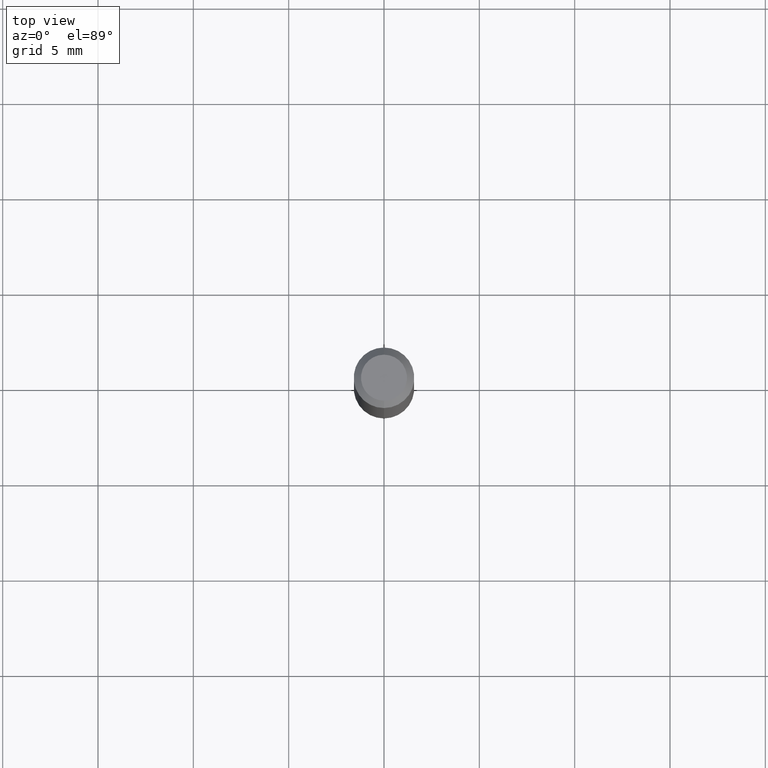
[diagram: clean part render]
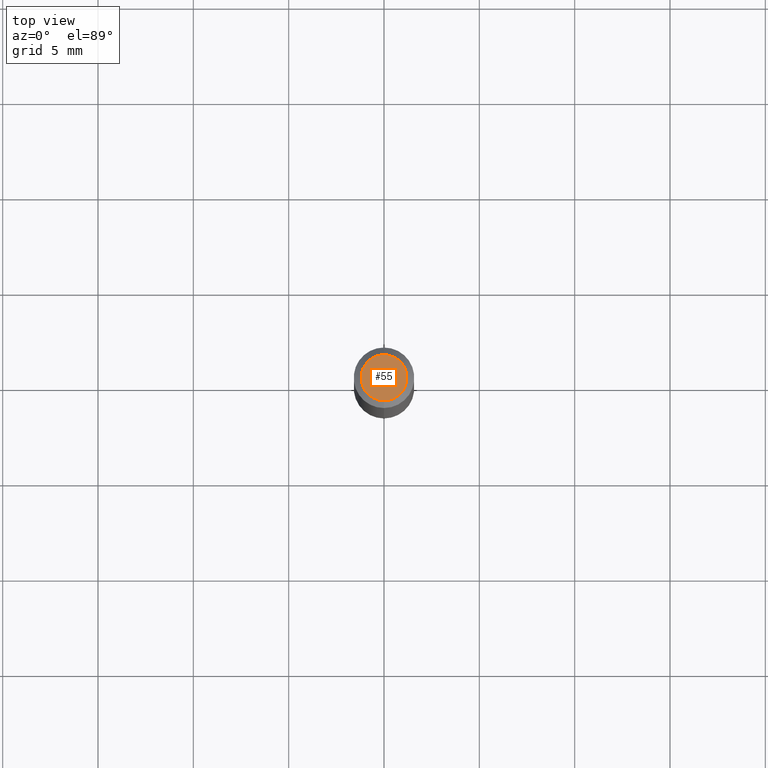
[diagram: same view with one face highlighted and labeled with its STEP entity id]
A machine part, top view. The second image highlights one B-rep face of the part: STEP entity #55.
In plain terms, the highlighted planar face has unit normal (0, -0, -1).
Its self-contained STEP definition (entity closure, byte-faithful):
#9 = DIRECTION ( 'NONE',  ( -2.445665953977767409E-29, 3.491199011983142468E-15, 1.000000000000000000 ) ) ;
#18 = EDGE_CURVE ( 'NONE', #265, #356, #402, .T. ) ;
#31 = ORIENTED_EDGE ( 'NONE', *, *, #45, .T. ) ;
#45 = EDGE_CURVE ( 'NONE', #356, #265, #327, .T. ) ;
#51 = AXIS2_PLACEMENT_3D ( 'NONE', #313, #154, #239 ) ;
#55 = ADVANCED_FACE ( 'NONE', ( #113 ), #123, .F. ) ;
#113 = FACE_OUTER_BOUND ( 'NONE', #249, .T. ) ;
#122 = DIRECTION ( 'NONE',  ( -6.982962677686266711E-15, -1.000000000000000000, 3.491199011983143651E-15 ) ) ;
#123 = PLANE ( 'NONE',  #51 ) ;
#143 = AXIS2_PLACEMENT_3D ( 'NONE', #158, #318, #122 ) ;
#154 = DIRECTION ( 'NONE',  ( 2.445665953977767409E-29, -3.491199011983142468E-15, -1.000000000000000000 ) ) ;
#158 = CARTESIAN_POINT ( 'NONE',  ( -5.856764221196150248E-45, 8.360556939185363712E-31, 2.394752321620367719E-16 ) ) ;
#228 = ORIENTED_EDGE ( 'NONE', *, *, #18, .T. ) ;
#236 = DIRECTION ( 'NONE',  ( -6.982962677686266711E-15, -1.000000000000000000, 3.491199011983143651E-15 ) ) ;
#239 = DIRECTION ( 'NONE',  ( 6.982962677686265922E-15, 1.000000000000000000, -3.491199011983142468E-15 ) ) ;
#248 = AXIS2_PLACEMENT_3D ( 'NONE', #400, #9, #236 ) ;
#249 = EDGE_LOOP ( 'NONE', ( #228, #31 ) ) ;
#265 = VERTEX_POINT ( 'NONE', #366 ) ;
#313 = CARTESIAN_POINT ( 'NONE',  ( 3.316907271900976096E-16, 0.04749999999999999362, -4.609433698818087166E-17 ) ) ;
#318 = DIRECTION ( 'NONE',  ( -2.445665953977767409E-29, 3.491199011983142468E-15, 1.000000000000000000 ) ) ;
#327 = CIRCLE ( 'NONE', #143, 0.04749999999999999362 ) ;
#356 = VERTEX_POINT ( 'NONE', #428 ) ;
#366 = CARTESIAN_POINT ( 'NONE',  ( 3.840629472727447874E-16, 0.04749999999999999362, 7.364327909283752044E-17 ) ) ;
#400 = CARTESIAN_POINT ( 'NONE',  ( -5.856764221196150248E-45, 8.360556939185363712E-31, 2.394752321620367719E-16 ) ) ;
#402 = CIRCLE ( 'NONE', #248, 0.04749999999999999362 ) ;
#428 = CARTESIAN_POINT ( 'NONE',  ( -3.773273898774340269E-16, -0.04749999999999999362, 4.053071852312360726E-16 ) ) ;